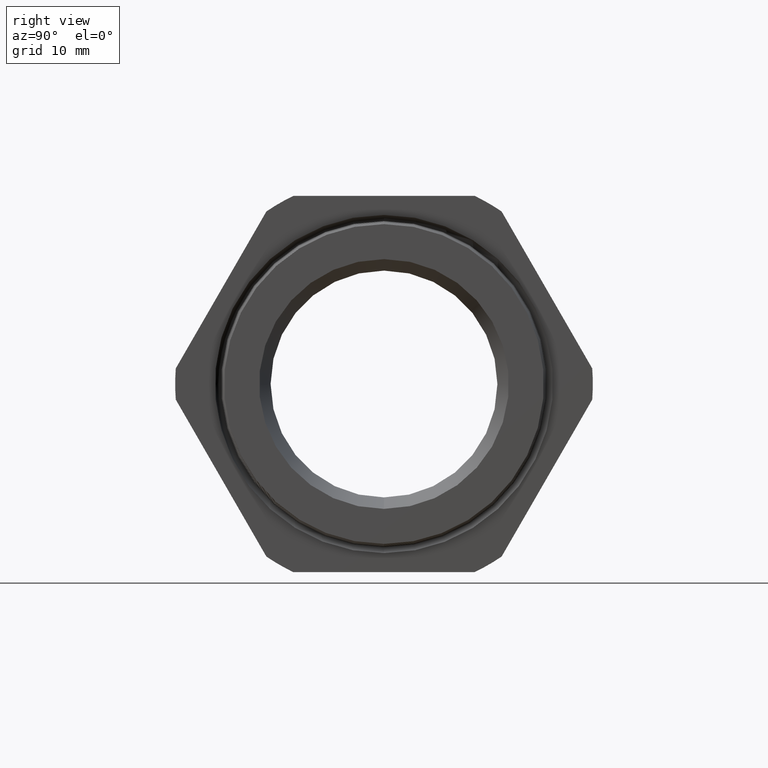
[diagram: clean part render]
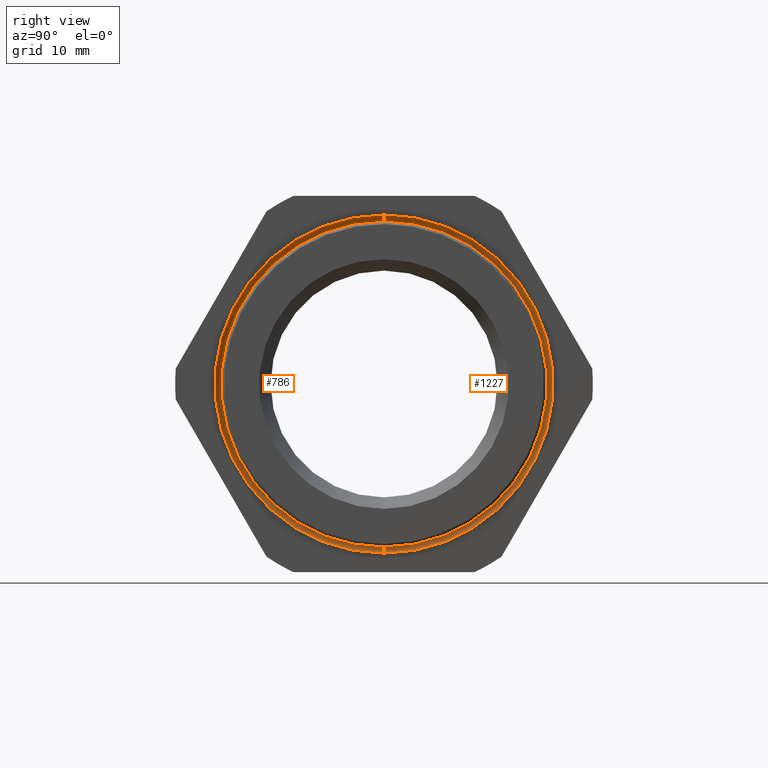
[diagram: same view with one multi-face feature highlighted, each face labeled with its STEP entity id]
A machine part, right view. The highlighted faces form ONE feature: a constant-radius fillet chain: 2 tangent blend faces with common blend radius 0.9525 mm. The faces share edges in the B-rep.
Their STEP definitions:
[1] entity #786 (Torus):
#732 = VERTEX_POINT ( 'NONE', #2552 ) ;
#733 = VERTEX_POINT ( 'NONE', #2551 ) ;
#744 = EDGE_CURVE ( 'NONE', #733, #732, #2593, .T. ) ;
#764 = VERTEX_POINT ( 'NONE', #2618 ) ;
#765 = ORIENTED_EDGE ( 'NONE', *, *, #767, .F. ) ;
#766 = ORIENTED_EDGE ( 'NONE', *, *, #768, .F. ) ;
#767 = EDGE_CURVE ( 'NONE', #764, #770, #2617, .T. ) ;
#768 = EDGE_CURVE ( 'NONE', #732, #764, #2675, .T. ) ;
#770 = VERTEX_POINT ( 'NONE', #2669 ) ;
#772 = ORIENTED_EDGE ( 'NONE', *, *, #744, .F. ) ;
#774 = EDGE_LOOP ( 'NONE', ( #772, #781, #765, #766 ) ) ;
#780 = EDGE_CURVE ( 'NONE', #733, #770, #2654, .T. ) ;
#781 = ORIENTED_EDGE ( 'NONE', *, *, #780, .T. ) ;
#786 = ADVANCED_FACE ( 'NONE', ( #2704 ), #2703, .F. ) ;
#2551 = CARTESIAN_POINT ( 'NONE',  ( -0.3089999999999997200, 1.058320484402613100E-016, 0.8641842571584371600 ) ) ;
#2552 = CARTESIAN_POINT ( 'NONE',  ( -0.3089999999999997200, 0.0000000000000000000, -0.8641842571584371600 ) ) ;
#2589 = DIRECTION ( 'NONE',  ( 0.0000000000000000000, 0.0000000000000000000, -1.000000000000000000 ) ) ;
#2590 = DIRECTION ( 'NONE',  ( 1.000000000000000000, 0.0000000000000000000, 0.0000000000000000000 ) ) ;
#2591 = CARTESIAN_POINT ( 'NONE',  ( -0.3089999999999997200, 0.0000000000000000000, 0.0000000000000000000 ) ) ;
#2592 = AXIS2_PLACEMENT_3D ( 'NONE', #2591, #2590, #2589 ) ;
#2593 = CIRCLE ( 'NONE', #2592, 0.8641842571584371600 ) ;
#2614 = DIRECTION ( 'NONE',  ( -1.000000000000000000, 0.0000000000000000000, 0.0000000000000000000 ) ) ;
#2615 = CARTESIAN_POINT ( 'NONE',  ( -0.3100000000000000000, 0.0000000000000000000, 0.0000000000000000000 ) ) ;
#2616 = AXIS2_PLACEMENT_3D ( 'NONE', #2615, #2614, #2676 ) ;
#2617 = CIRCLE ( 'NONE', #2616, 0.9391709214538901400 ) ;
#2618 = CARTESIAN_POINT ( 'NONE',  ( -0.3100000000000000000, 0.0000000000000000000, -0.9391709214538901400 ) ) ;
#2650 = DIRECTION ( 'NONE',  ( 0.0000000000000000000, 1.224646799147353700E-016, 1.000000000000000000 ) ) ;
#2651 = DIRECTION ( 'NONE',  ( 0.0000000000000000000, 1.000000000000000000, -1.224646799147353200E-016 ) ) ;
#2652 = CARTESIAN_POINT ( 'NONE',  ( -0.3089999999999997200, 1.104244739370638900E-016, 0.9016842571584371400 ) ) ;
#2653 = AXIS2_PLACEMENT_3D ( 'NONE', #2652, #2651, #2650 ) ;
#2654 = CIRCLE ( 'NONE', #2653, 0.03749999999999994300 ) ;
#2669 = CARTESIAN_POINT ( 'NONE',  ( -0.3100000000000000000, 1.150152662810777000E-016, 0.9391709214538901400 ) ) ;
#2671 = DIRECTION ( 'NONE',  ( 0.0000000000000000000, 0.0000000000000000000, -1.000000000000000000 ) ) ;
#2672 = DIRECTION ( 'NONE',  ( 0.0000000000000000000, -1.000000000000000000, 0.0000000000000000000 ) ) ;
#2673 = CARTESIAN_POINT ( 'NONE',  ( -0.3089999999999997200, 0.0000000000000000000, -0.9016842571584371400 ) ) ;
#2674 = AXIS2_PLACEMENT_3D ( 'NONE', #2673, #2672, #2671 ) ;
#2675 = CIRCLE ( 'NONE', #2674, 0.03749999999999994300 ) ;
#2676 = DIRECTION ( 'NONE',  ( 0.0000000000000000000, 0.0000000000000000000, -1.000000000000000000 ) ) ;
#2699 = DIRECTION ( 'NONE',  ( 0.0000000000000000000, 0.0000000000000000000, -1.000000000000000000 ) ) ;
#2700 = DIRECTION ( 'NONE',  ( 1.000000000000000000, 0.0000000000000000000, 0.0000000000000000000 ) ) ;
#2701 = CARTESIAN_POINT ( 'NONE',  ( -0.3089999999999997200, 0.0000000000000000000, 0.0000000000000000000 ) ) ;
#2702 = AXIS2_PLACEMENT_3D ( 'NONE', #2701, #2700, #2699 ) ;
#2703 = TOROIDAL_SURFACE ( 'NONE', #2702, 0.9016842571584371400, 0.03749999999999999900 ) ;
#2704 = FACE_OUTER_BOUND ( 'NONE', #774, .T. ) ;
[2] entity #1227 (Torus):
#732 = VERTEX_POINT ( 'NONE', #2552 ) ;
#733 = VERTEX_POINT ( 'NONE', #2551 ) ;
#734 = EDGE_CURVE ( 'NONE', #732, #733, #2613, .T. ) ;
#764 = VERTEX_POINT ( 'NONE', #2618 ) ;
#768 = EDGE_CURVE ( 'NONE', #732, #764, #2675, .T. ) ;
#770 = VERTEX_POINT ( 'NONE', #2669 ) ;
#780 = EDGE_CURVE ( 'NONE', #733, #770, #2654, .T. ) ;
#1212 = ORIENTED_EDGE ( 'NONE', *, *, #734, .F. ) ;
#1213 = ORIENTED_EDGE ( 'NONE', *, *, #768, .T. ) ;
#1214 = ORIENTED_EDGE ( 'NONE', *, *, #4163, .F. ) ;
#1215 = ORIENTED_EDGE ( 'NONE', *, *, #780, .F. ) ;
#1227 = ADVANCED_FACE ( 'NONE', ( #3431 ), #3430, .F. ) ;
#1228 = EDGE_LOOP ( 'NONE', ( #1212, #1213, #1214, #1215 ) ) ;
#2551 = CARTESIAN_POINT ( 'NONE',  ( -0.3089999999999997200, 1.058320484402613100E-016, 0.8641842571584371600 ) ) ;
#2552 = CARTESIAN_POINT ( 'NONE',  ( -0.3089999999999997200, 0.0000000000000000000, -0.8641842571584371600 ) ) ;
#2609 = DIRECTION ( 'NONE',  ( 0.0000000000000000000, 0.0000000000000000000, -1.000000000000000000 ) ) ;
#2610 = DIRECTION ( 'NONE',  ( 1.000000000000000000, 0.0000000000000000000, 0.0000000000000000000 ) ) ;
#2611 = CARTESIAN_POINT ( 'NONE',  ( -0.3089999999999997200, 0.0000000000000000000, 0.0000000000000000000 ) ) ;
#2612 = AXIS2_PLACEMENT_3D ( 'NONE', #2611, #2610, #2609 ) ;
#2613 = CIRCLE ( 'NONE', #2612, 0.8641842571584371600 ) ;
#2618 = CARTESIAN_POINT ( 'NONE',  ( -0.3100000000000000000, 0.0000000000000000000, -0.9391709214538901400 ) ) ;
#2650 = DIRECTION ( 'NONE',  ( 0.0000000000000000000, 1.224646799147353700E-016, 1.000000000000000000 ) ) ;
#2651 = DIRECTION ( 'NONE',  ( 0.0000000000000000000, 1.000000000000000000, -1.224646799147353200E-016 ) ) ;
#2652 = CARTESIAN_POINT ( 'NONE',  ( -0.3089999999999997200, 1.104244739370638900E-016, 0.9016842571584371400 ) ) ;
#2653 = AXIS2_PLACEMENT_3D ( 'NONE', #2652, #2651, #2650 ) ;
#2654 = CIRCLE ( 'NONE', #2653, 0.03749999999999994300 ) ;
#2669 = CARTESIAN_POINT ( 'NONE',  ( -0.3100000000000000000, 1.150152662810777000E-016, 0.9391709214538901400 ) ) ;
#2671 = DIRECTION ( 'NONE',  ( 0.0000000000000000000, 0.0000000000000000000, -1.000000000000000000 ) ) ;
#2672 = DIRECTION ( 'NONE',  ( 0.0000000000000000000, -1.000000000000000000, 0.0000000000000000000 ) ) ;
#2673 = CARTESIAN_POINT ( 'NONE',  ( -0.3089999999999997200, 0.0000000000000000000, -0.9016842571584371400 ) ) ;
#2674 = AXIS2_PLACEMENT_3D ( 'NONE', #2673, #2672, #2671 ) ;
#2675 = CIRCLE ( 'NONE', #2674, 0.03749999999999994300 ) ;
#3426 = DIRECTION ( 'NONE',  ( 0.0000000000000000000, 0.0000000000000000000, -1.000000000000000000 ) ) ;
#3427 = DIRECTION ( 'NONE',  ( 1.000000000000000000, 0.0000000000000000000, 0.0000000000000000000 ) ) ;
#3428 = AXIS2_PLACEMENT_3D ( 'NONE', #3436, #3427, #3426 ) ;
#3430 = TOROIDAL_SURFACE ( 'NONE', #3428, 0.9016842571584371400, 0.03749999999999999900 ) ;
#3431 = FACE_OUTER_BOUND ( 'NONE', #1228, .T. ) ;
#3436 = CARTESIAN_POINT ( 'NONE',  ( -0.3089999999999997200, 0.0000000000000000000, 0.0000000000000000000 ) ) ;
#3848 = DIRECTION ( 'NONE',  ( 0.0000000000000000000, 0.0000000000000000000, -1.000000000000000000 ) ) ;
#3849 = DIRECTION ( 'NONE',  ( -1.000000000000000000, 0.0000000000000000000, 0.0000000000000000000 ) ) ;
#3850 = AXIS2_PLACEMENT_3D ( 'NONE', #3856, #3849, #3848 ) ;
#3851 = CIRCLE ( 'NONE', #3850, 0.9391709214538901400 ) ;
#3856 = CARTESIAN_POINT ( 'NONE',  ( -0.3100000000000000000, 0.0000000000000000000, 0.0000000000000000000 ) ) ;
#4163 = EDGE_CURVE ( 'NONE', #770, #764, #3851, .T. ) ;